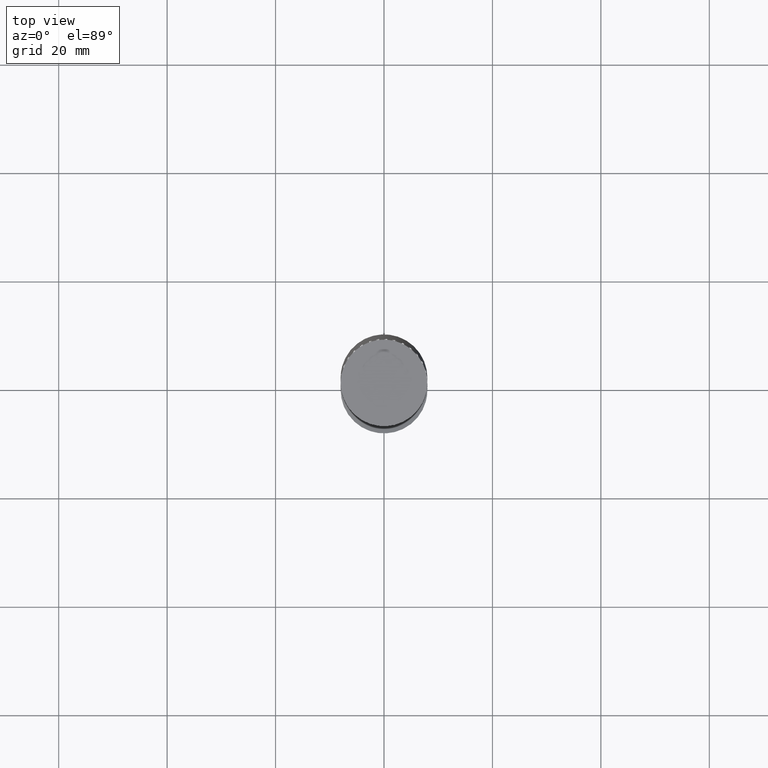
[diagram: clean part render]
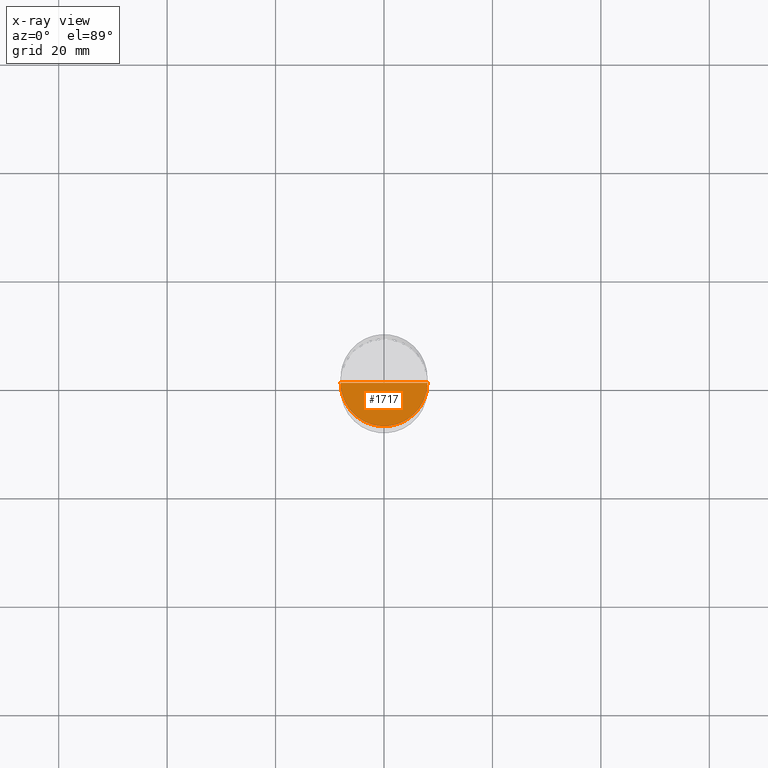
[diagram: x-ray — body ghosted, one internal face saturated and labeled with its STEP entity id]
A machine part, top view, then the same camera in x-ray: the body is ghosted and one INTERNAL B-rep face — a face not visible from any outside direction — is saturated and labeled: STEP entity #1717.
In plain terms, the highlighted face is a freeform B-spline surface patch.
Its self-contained STEP definition (entity closure, byte-faithful):
#1564=CARTESIAN_POINT('',(8.0,0.0,-7.0));
#1568=CARTESIAN_POINT('',(-8.0,0.0,-7.0));
#1569=CARTESIAN_POINT('',(0.0,0.0,-7.0));
#1573=CARTESIAN_POINT('',(-8.0,-8.0,-7.0));
#1574=CARTESIAN_POINT('',(0.0,-8.0,-7.0));
#1575=CARTESIAN_POINT('',(8.0,-8.0,-7.0));
#1702=(
BOUNDED_SURFACE()
B_SPLINE_SURFACE(1,2,(
(#1568,#1573,#1574,#1575,#1564),
(#1569,#1569,#1569,#1569,#1569)
), .UNSPECIFIED.,.F.,.F.,.F.)
B_SPLINE_SURFACE_WITH_KNOTS((2,2),(3,2,3),(
0.0,1.0),(
0.0,0.5,1.0), .UNSPECIFIED.)
GEOMETRIC_REPRESENTATION_ITEM()
RATIONAL_B_SPLINE_SURFACE(((1.0,0.707106781187,1.0,0.707106781187,1.0),
(1.0,0.707106781187,1.0,0.707106781187,1.0)
))
REPRESENTATION_ITEM('')
SURFACE()
);
#1703=(
BOUNDED_CURVE()
B_SPLINE_CURVE(2,(#1564,#1575,#1574,#1573,#1568),.UNSPECIFIED.,.F.,.F.)
B_SPLINE_CURVE_WITH_KNOTS((3,2,3),
(0.0,0.5,1.0),.UNSPECIFIED.)
CURVE()
GEOMETRIC_REPRESENTATION_ITEM()
RATIONAL_B_SPLINE_CURVE((1.0,0.707106781187,1.0,0.707106781187,1.0))
REPRESENTATION_ITEM('')
);
#1704=(
BOUNDED_CURVE()
B_SPLINE_CURVE(1,(#1568,#1569),.UNSPECIFIED.,.F.,.F.)
B_SPLINE_CURVE_WITH_KNOTS((2,2),
(0.0,1.0),.UNSPECIFIED.)
CURVE()
GEOMETRIC_REPRESENTATION_ITEM()
RATIONAL_B_SPLINE_CURVE((1.0,1.0))
REPRESENTATION_ITEM('')
);
#1705=(
BOUNDED_CURVE()
B_SPLINE_CURVE(1,(#1569,#1564),.UNSPECIFIED.,.F.,.F.)
B_SPLINE_CURVE_WITH_KNOTS((2,2),
(0.0,1.0),.UNSPECIFIED.)
CURVE()
GEOMETRIC_REPRESENTATION_ITEM()
RATIONAL_B_SPLINE_CURVE((1.0,1.0))
REPRESENTATION_ITEM('')
);
#1706=VERTEX_POINT('',#1564);
#1707=VERTEX_POINT('',#1568);
#1708=VERTEX_POINT('',#1569);
#1709=EDGE_CURVE('',#1706,#1707,#1703,.T.);
#1710=EDGE_CURVE('',#1707,#1708,#1704,.T.);
#1711=EDGE_CURVE('',#1708,#1706,#1705,.T.);
#1712=ORIENTED_EDGE('',*,*,#1709,.T.);
#1713=ORIENTED_EDGE('',*,*,#1710,.T.);
#1714=ORIENTED_EDGE('',*,*,#1711,.T.);
#1715=EDGE_LOOP('',(#1712,#1713,#1714));
#1716=FACE_OUTER_BOUND('',#1715,.T.);
#1717=ADVANCED_FACE('',(#1716),#1702,.T.);